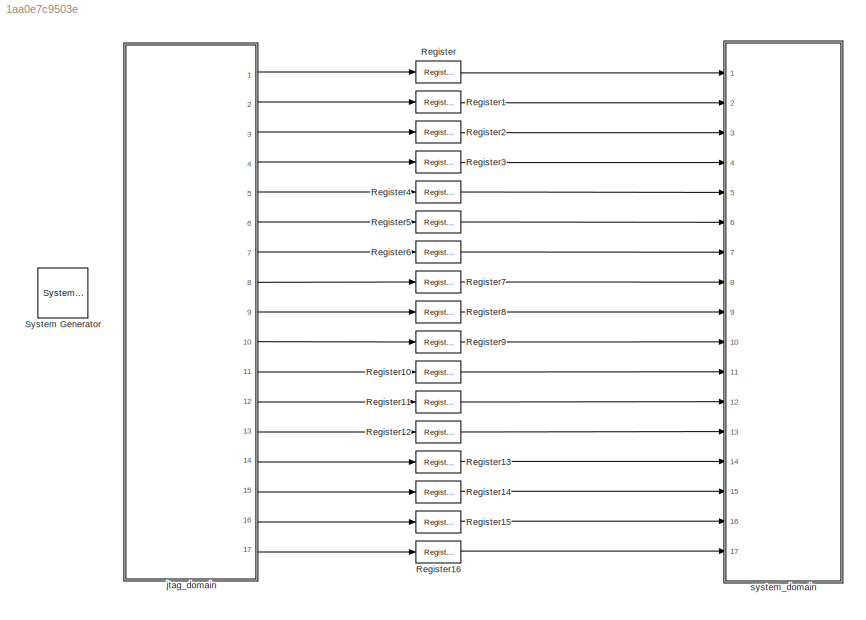
MODEL slx_1aa0e7c9503e
KIND model
CONFIG AbsTol = auto
CONFIG EnableMultiTasking = on
CONFIG FixedStep = auto
CONFIG MaxStep = auto
CONFIG MinStep = auto
CONFIG RelTol = 1e-3
CONFIG SampleTimeConstraint = Unconstrained
CONFIG Solver = VariableStepAuto
CONFIG SolverName = VariableStepAuto
CONFIG StartTime = 0.0
CONFIG StopTime = 120
BLOCK [Reference]  System Generator  REF=xbsIndex_r4/ System Generator
  AttributesFormatString = System\nGenerator
  Ports = []
  SourceBlock = xbsIndex_r4/ System Generator
  SourceType = Xilinx System Generator Block
  Tag = genX
  UserDataPersistent = on
BLOCK [Reference] Register  REF=xbsIndex_r4/Register
  Ports = [1, 1]
  SourceBlock = xbsIndex_r4/Register
  SourceType = Xilinx Register Block
BLOCK [Reference] Register1  REF=xbsIndex_r4/Register
  Ports = [1, 1]
  SourceBlock = xbsIndex_r4/Register
  SourceType = Xilinx Register Block
BLOCK [Reference] Register10  REF=xbsIndex_r4/Register
  Ports = [1, 1]
  SourceBlock = xbsIndex_r4/Register
  SourceType = Xilinx Register Block
BLOCK [Reference] Register11  REF=xbsIndex_r4/Register
  Ports = [1, 1]
  SourceBlock = xbsIndex_r4/Register
  SourceType = Xilinx Register Block
BLOCK [Reference] Register12  REF=xbsIndex_r4/Register
  Ports = [1, 1]
  SourceBlock = xbsIndex_r4/Register
  SourceType = Xilinx Register Block
BLOCK [Reference] Register13  REF=xbsIndex_r4/Register
  Ports = [1, 1]
  SourceBlock = xbsIndex_r4/Register
  SourceType = Xilinx Register Block
BLOCK [Reference] Register14  REF=xbsIndex_r4/Register
  Ports = [1, 1]
  SourceBlock = xbsIndex_r4/Register
  SourceType = Xilinx Register Block
BLOCK [Reference] Register15  REF=xbsIndex_r4/Register
  Ports = [1, 1]
  SourceBlock = xbsIndex_r4/Register
  SourceType = Xilinx Register Block
BLOCK [Reference] Register16  REF=xbsIndex_r4/Register
  Ports = [1, 1]
  SourceBlock = xbsIndex_r4/Register
  SourceType = Xilinx Register Block
BLOCK [Reference] Register2  REF=xbsIndex_r4/Register
  Ports = [1, 1]
  SourceBlock = xbsIndex_r4/Register
  SourceType = Xilinx Register Block
BLOCK [Reference] Register3  REF=xbsIndex_r4/Register
  Ports = [1, 1]
  SourceBlock = xbsIndex_r4/Register
  SourceType = Xilinx Register Block
BLOCK [Reference] Register4  REF=xbsIndex_r4/Register
  Ports = [1, 1]
  SourceBlock = xbsIndex_r4/Register
  SourceType = Xilinx Register Block
BLOCK [Reference] Register5  REF=xbsIndex_r4/Register
  Ports = [1, 1]
  SourceBlock = xbsIndex_r4/Register
  SourceType = Xilinx Register Block
BLOCK [Reference] Register6  REF=xbsIndex_r4/Register
  Ports = [1, 1]
  SourceBlock = xbsIndex_r4/Register
  SourceType = Xilinx Register Block
BLOCK [Reference] Register7  REF=xbsIndex_r4/Register
  Ports = [1, 1]
  SourceBlock = xbsIndex_r4/Register
  SourceType = Xilinx Register Block
BLOCK [Reference] Register8  REF=xbsIndex_r4/Register
  Ports = [1, 1]
  SourceBlock = xbsIndex_r4/Register
  SourceType = Xilinx Register Block
BLOCK [Reference] Register9  REF=xbsIndex_r4/Register
  Ports = [1, 1]
  SourceBlock = xbsIndex_r4/Register
  SourceType = Xilinx Register Block
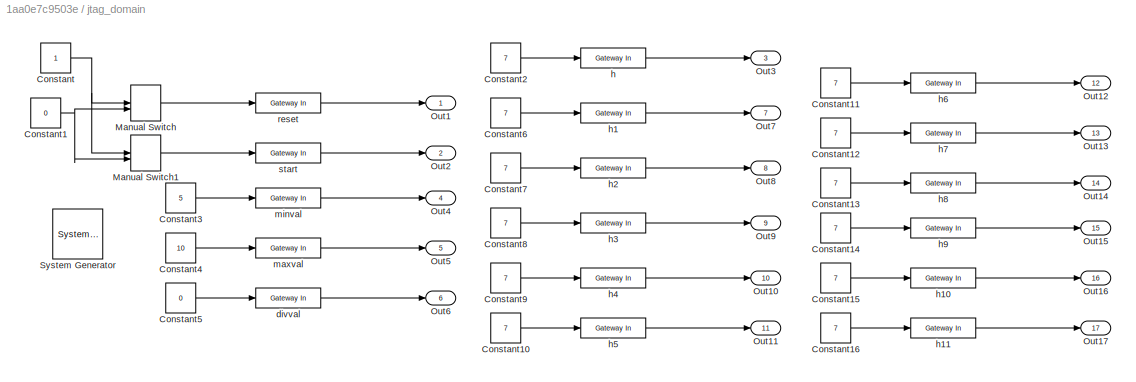
BLOCK [SubSystem] jtag_domain
  Ports = [0, 17]
  RequestExecContextInheritance = off
  Variant = off
BLOCK [Reference] jtag_domain/ System Generator  REF=xbsIndex_r4/ System Generator
  AttributesFormatString = System\nGenerator
  Ports = []
  SourceBlock = xbsIndex_r4/ System Generator
  SourceType = Xilinx System Generator Block
  Tag = genX
  UserDataPersistent = on
BLOCK [Constant] jtag_domain/Constant
BLOCK [Constant] jtag_domain/Constant1
  Value = 0
BLOCK [Constant] jtag_domain/Constant10
  Value = 7
BLOCK [Constant] jtag_domain/Constant11
  Value = 7
BLOCK [Constant] jtag_domain/Constant12
  Value = 7
BLOCK [Constant] jtag_domain/Constant13
  Value = 7
BLOCK [Constant] jtag_domain/Constant14
  Value = 7
BLOCK [Constant] jtag_domain/Constant15
  Value = 7
BLOCK [Constant] jtag_domain/Constant16
  Value = 7
BLOCK [Constant] jtag_domain/Constant2
  Value = 7
BLOCK [Constant] jtag_domain/Constant3
  Value = 5
BLOCK [Constant] jtag_domain/Constant4
  Value = 10
BLOCK [Constant] jtag_domain/Constant5
  Value = 0
BLOCK [Constant] jtag_domain/Constant6
  Value = 7
BLOCK [Constant] jtag_domain/Constant7
  Value = 7
BLOCK [Constant] jtag_domain/Constant8
  Value = 7
BLOCK [Constant] jtag_domain/Constant9
  Value = 7
BLOCK [ManualSwitch] jtag_domain/Manual Switch
  CurrentSetting = 0
BLOCK [ManualSwitch] jtag_domain/Manual Switch1
BLOCK [Outport] jtag_domain/Out1
  IconDisplay = Port number
BLOCK [Outport] jtag_domain/Out10
  IconDisplay = Port number
  Port = 10
BLOCK [Outport] jtag_domain/Out11
  IconDisplay = Port number
  Port = 11
BLOCK [Outport] jtag_domain/Out12
  IconDisplay = Port number
  Port = 12
BLOCK [Outport] jtag_domain/Out13
  IconDisplay = Port number
  Port = 13
BLOCK [Outport] jtag_domain/Out14
  IconDisplay = Port number
  Port = 14
BLOCK [Outport] jtag_domain/Out15
  IconDisplay = Port number
  Port = 15
BLOCK [Outport] jtag_domain/Out16
  IconDisplay = Port number
  Port = 16
BLOCK [Outport] jtag_domain/Out17
  IconDisplay = Port number
  Port = 17
BLOCK [Outport] jtag_domain/Out2
  IconDisplay = Port number
  Port = 2
BLOCK [Outport] jtag_domain/Out3
  IconDisplay = Port number
  Port = 3
BLOCK [Outport] jtag_domain/Out4
  IconDisplay = Port number
  Port = 4
BLOCK [Outport] jtag_domain/Out5
  IconDisplay = Port number
  Port = 5
BLOCK [Outport] jtag_domain/Out6
  IconDisplay = Port number
  Port = 6
BLOCK [Outport] jtag_domain/Out7
  IconDisplay = Port number
  Port = 7
BLOCK [Outport] jtag_domain/Out8
  IconDisplay = Port number
  Port = 8
BLOCK [Outport] jtag_domain/Out9
  IconDisplay = Port number
  Port = 9
BLOCK [Reference] jtag_domain/divval  REF=xbsIndex_r4/Gateway In
  Ports = [1, 1]
  SourceBlock = xbsIndex_r4/Gateway In
  SourceType = Xilinx Gateway In Block
BLOCK [Reference] jtag_domain/h  REF=xbsIndex_r4/Gateway In
  Ports = [1, 1]
  SourceBlock = xbsIndex_r4/Gateway In
  SourceType = Xilinx Gateway In Block
BLOCK [Reference] jtag_domain/h1  REF=xbsIndex_r4/Gateway In
  Ports = [1, 1]
  SourceBlock = xbsIndex_r4/Gateway In
  SourceType = Xilinx Gateway In Block
BLOCK [Reference] jtag_domain/h10  REF=xbsIndex_r4/Gateway In
  Ports = [1, 1]
  SourceBlock = xbsIndex_r4/Gateway In
  SourceType = Xilinx Gateway In Block
BLOCK [Reference] jtag_domain/h11  REF=xbsIndex_r4/Gateway In
  Ports = [1, 1]
  SourceBlock = xbsIndex_r4/Gateway In
  SourceType = Xilinx Gateway In Block
BLOCK [Reference] jtag_domain/h2  REF=xbsIndex_r4/Gateway In
  Ports = [1, 1]
  SourceBlock = xbsIndex_r4/Gateway In
  SourceType = Xilinx Gateway In Block
BLOCK [Reference] jtag_domain/h3  REF=xbsIndex_r4/Gateway In
  Ports = [1, 1]
  SourceBlock = xbsIndex_r4/Gateway In
  SourceType = Xilinx Gateway In Block
BLOCK [Reference] jtag_domain/h4  REF=xbsIndex_r4/Gateway In
  Ports = [1, 1]
  SourceBlock = xbsIndex_r4/Gateway In
  SourceType = Xilinx Gateway In Block
BLOCK [Reference] jtag_domain/h5  REF=xbsIndex_r4/Gateway In
  Ports = [1, 1]
  SourceBlock = xbsIndex_r4/Gateway In
  SourceType = Xilinx Gateway In Block
BLOCK [Reference] jtag_domain/h6  REF=xbsIndex_r4/Gateway In
  Ports = [1, 1]
  SourceBlock = xbsIndex_r4/Gateway In
  SourceType = Xilinx Gateway In Block
BLOCK [Reference] jtag_domain/h7  REF=xbsIndex_r4/Gateway In
  Ports = [1, 1]
  SourceBlock = xbsIndex_r4/Gateway In
  SourceType = Xilinx Gateway In Block
BLOCK [Reference] jtag_domain/h8  REF=xbsIndex_r4/Gateway In
  Ports = [1, 1]
  SourceBlock = xbsIndex_r4/Gateway In
  SourceType = Xilinx Gateway In Block
BLOCK [Reference] jtag_domain/h9  REF=xbsIndex_r4/Gateway In
  Ports = [1, 1]
  SourceBlock = xbsIndex_r4/Gateway In
  SourceType = Xilinx Gateway In Block
BLOCK [Reference] jtag_domain/maxval  REF=xbsIndex_r4/Gateway In
  Ports = [1, 1]
  SourceBlock = xbsIndex_r4/Gateway In
  SourceType = Xilinx Gateway In Block
BLOCK [Reference] jtag_domain/minval  REF=xbsIndex_r4/Gateway In
  Ports = [1, 1]
  SourceBlock = xbsIndex_r4/Gateway In
  SourceType = Xilinx Gateway In Block
BLOCK [Reference] jtag_domain/reset  REF=xbsIndex_r4/Gateway In
  Ports = [1, 1]
  SourceBlock = xbsIndex_r4/Gateway In
  SourceType = Xilinx Gateway In Block
BLOCK [Reference] jtag_domain/start  REF=xbsIndex_r4/Gateway In
  Ports = [1, 1]
  SourceBlock = xbsIndex_r4/Gateway In
  SourceType = Xilinx Gateway In Block
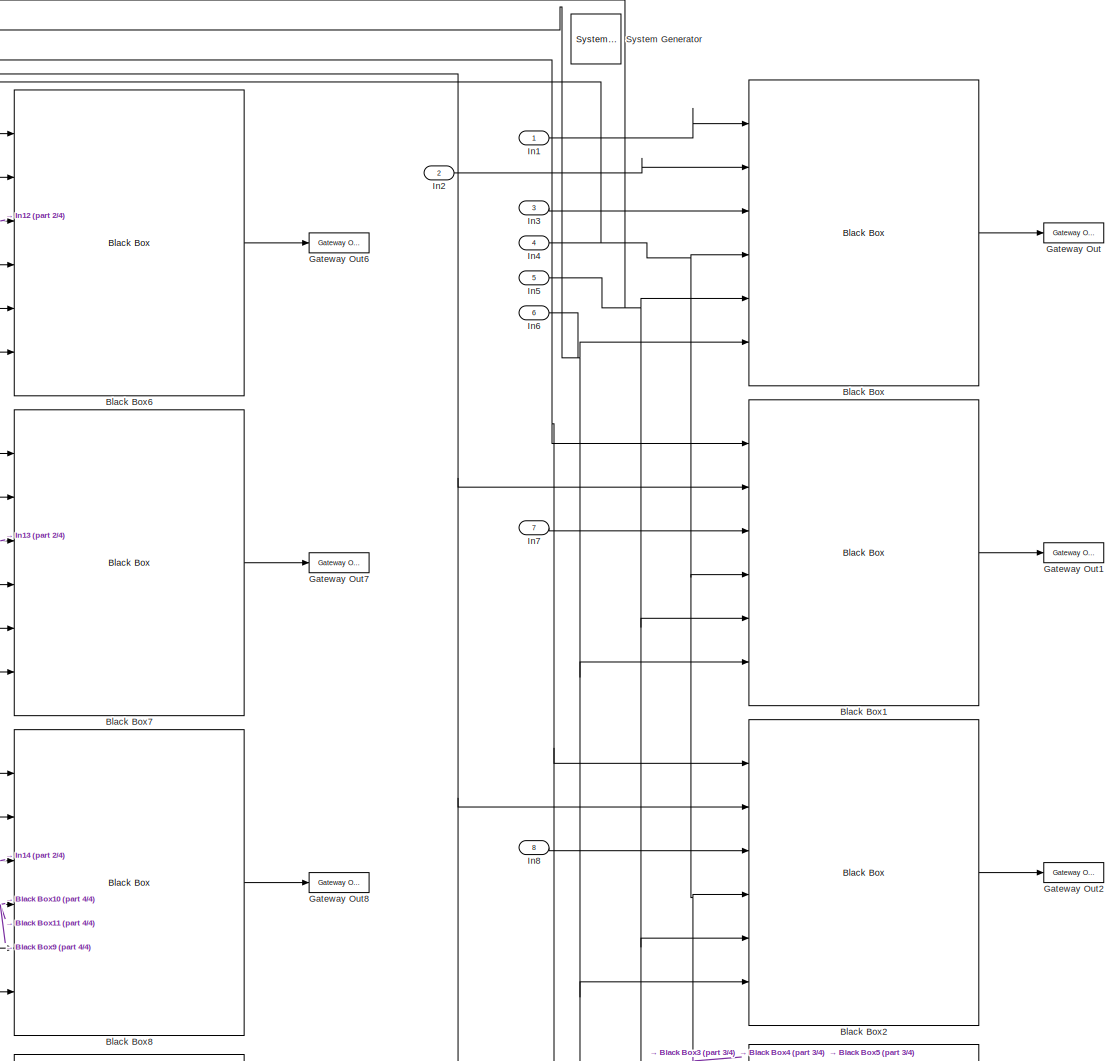
[diagram: system_domain - part 1/4, full width, top band]
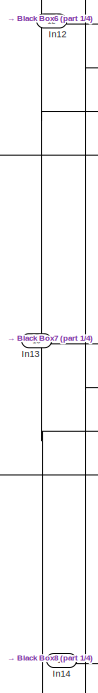
[diagram: system_domain - part 2/4, top left region]
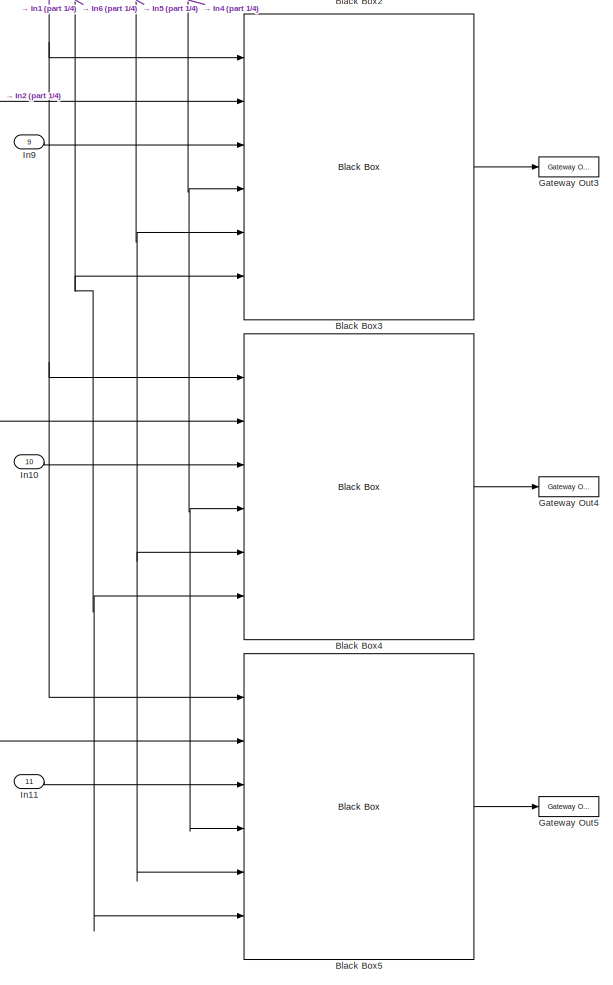
[diagram: system_domain - part 3/4, bottom right region]
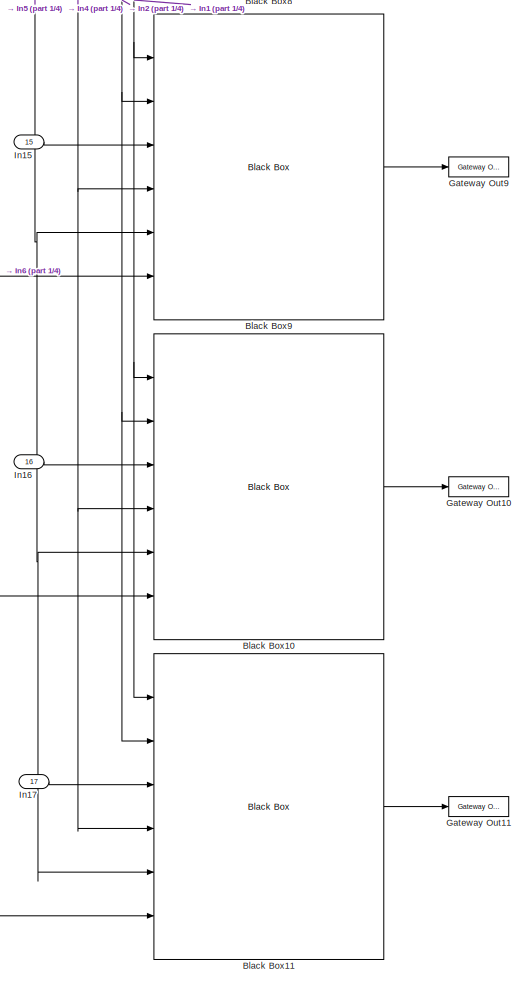
[diagram: system_domain - part 4/4, bottom left region]
BLOCK [SubSystem] system_domain
  Ports = [17]
  RequestExecContextInheritance = off
  Variant = off
BLOCK [Reference] system_domain/ System Generator  REF=xbsIndex_r4/ System Generator
  AttributesFormatString = System\nGenerator
  Ports = []
  SourceBlock = xbsIndex_r4/ System Generator
  SourceType = Xilinx System Generator Block
  Tag = genX
  UserDataPersistent = on
BLOCK [Reference] system_domain/Black Box  REF=xbsIndex_r4/Black Box
  Ports = [6, 1]
  SourceBlock = xbsIndex_r4/Black Box
  SourceType = Xilinx Black Box Block
BLOCK [Reference] system_domain/Black Box1  REF=xbsIndex_r4/Black Box
  Ports = [6, 1]
  SourceBlock = xbsIndex_r4/Black Box
  SourceType = Xilinx Black Box Block
BLOCK [Reference] system_domain/Black Box10  REF=xbsIndex_r4/Black Box
  Ports = [6, 1]
  SourceBlock = xbsIndex_r4/Black Box
  SourceType = Xilinx Black Box Block
BLOCK [Reference] system_domain/Black Box11  REF=xbsIndex_r4/Black Box
  Ports = [6, 1]
  SourceBlock = xbsIndex_r4/Black Box
  SourceType = Xilinx Black Box Block
BLOCK [Reference] system_domain/Black Box2  REF=xbsIndex_r4/Black Box
  Ports = [6, 1]
  SourceBlock = xbsIndex_r4/Black Box
  SourceType = Xilinx Black Box Block
BLOCK [Reference] system_domain/Black Box3  REF=xbsIndex_r4/Black Box
  Ports = [6, 1]
  SourceBlock = xbsIndex_r4/Black Box
  SourceType = Xilinx Black Box Block
BLOCK [Reference] system_domain/Black Box4  REF=xbsIndex_r4/Black Box
  Ports = [6, 1]
  SourceBlock = xbsIndex_r4/Black Box
  SourceType = Xilinx Black Box Block
BLOCK [Reference] system_domain/Black Box5  REF=xbsIndex_r4/Black Box
  Ports = [6, 1]
  SourceBlock = xbsIndex_r4/Black Box
  SourceType = Xilinx Black Box Block
BLOCK [Reference] system_domain/Black Box6  REF=xbsIndex_r4/Black Box
  Ports = [6, 1]
  SourceBlock = xbsIndex_r4/Black Box
  SourceType = Xilinx Black Box Block
BLOCK [Reference] system_domain/Black Box7  REF=xbsIndex_r4/Black Box
  Ports = [6, 1]
  SourceBlock = xbsIndex_r4/Black Box
  SourceType = Xilinx Black Box Block
BLOCK [Reference] system_domain/Black Box8  REF=xbsIndex_r4/Black Box
  Ports = [6, 1]
  SourceBlock = xbsIndex_r4/Black Box
  SourceType = Xilinx Black Box Block
BLOCK [Reference] system_domain/Black Box9  REF=xbsIndex_r4/Black Box
  Ports = [6, 1]
  SourceBlock = xbsIndex_r4/Black Box
  SourceType = Xilinx Black Box Block
BLOCK [Reference] system_domain/Gateway Out  REF=xbsIndex_r4/Gateway Out
  Ports = [1, 1]
  SourceBlock = xbsIndex_r4/Gateway Out
  SourceType = Xilinx Gateway Out Block
BLOCK [Reference] system_domain/Gateway Out1  REF=xbsIndex_r4/Gateway Out
  Ports = [1, 1]
  SourceBlock = xbsIndex_r4/Gateway Out
  SourceType = Xilinx Gateway Out Block
BLOCK [Reference] system_domain/Gateway Out10  REF=xbsIndex_r4/Gateway Out
  Ports = [1, 1]
  SourceBlock = xbsIndex_r4/Gateway Out
  SourceType = Xilinx Gateway Out Block
BLOCK [Reference] system_domain/Gateway Out11  REF=xbsIndex_r4/Gateway Out
  Ports = [1, 1]
  SourceBlock = xbsIndex_r4/Gateway Out
  SourceType = Xilinx Gateway Out Block
BLOCK [Reference] system_domain/Gateway Out2  REF=xbsIndex_r4/Gateway Out
  Ports = [1, 1]
  SourceBlock = xbsIndex_r4/Gateway Out
  SourceType = Xilinx Gateway Out Block
BLOCK [Reference] system_domain/Gateway Out3  REF=xbsIndex_r4/Gateway Out
  Ports = [1, 1]
  SourceBlock = xbsIndex_r4/Gateway Out
  SourceType = Xilinx Gateway Out Block
BLOCK [Reference] system_domain/Gateway Out4  REF=xbsIndex_r4/Gateway Out
  Ports = [1, 1]
  SourceBlock = xbsIndex_r4/Gateway Out
  SourceType = Xilinx Gateway Out Block
BLOCK [Reference] system_domain/Gateway Out5  REF=xbsIndex_r4/Gateway Out
  Ports = [1, 1]
  SourceBlock = xbsIndex_r4/Gateway Out
  SourceType = Xilinx Gateway Out Block
BLOCK [Reference] system_domain/Gateway Out6  REF=xbsIndex_r4/Gateway Out
  Ports = [1, 1]
  SourceBlock = xbsIndex_r4/Gateway Out
  SourceType = Xilinx Gateway Out Block
BLOCK [Reference] system_domain/Gateway Out7  REF=xbsIndex_r4/Gateway Out
  Ports = [1, 1]
  SourceBlock = xbsIndex_r4/Gateway Out
  SourceType = Xilinx Gateway Out Block
BLOCK [Reference] system_domain/Gateway Out8  REF=xbsIndex_r4/Gateway Out
  Ports = [1, 1]
  SourceBlock = xbsIndex_r4/Gateway Out
  SourceType = Xilinx Gateway Out Block
BLOCK [Reference] system_domain/Gateway Out9  REF=xbsIndex_r4/Gateway Out
  Ports = [1, 1]
  SourceBlock = xbsIndex_r4/Gateway Out
  SourceType = Xilinx Gateway Out Block
BLOCK [Inport] system_domain/In1
  IconDisplay = Port number
BLOCK [Inport] system_domain/In10
  IconDisplay = Port number
  Port = 10
BLOCK [Inport] system_domain/In11
  IconDisplay = Port number
  Port = 11
BLOCK [Inport] system_domain/In12
  IconDisplay = Port number
  Port = 12
BLOCK [Inport] system_domain/In13
  IconDisplay = Port number
  Port = 13
BLOCK [Inport] system_domain/In14
  IconDisplay = Port number
  Port = 14
BLOCK [Inport] system_domain/In15
  IconDisplay = Port number
  Port = 15
BLOCK [Inport] system_domain/In16
  IconDisplay = Port number
  Port = 16
BLOCK [Inport] system_domain/In17
  IconDisplay = Port number
  Port = 17
BLOCK [Inport] system_domain/In2
  IconDisplay = Port number
  Port = 2
BLOCK [Inport] system_domain/In3
  IconDisplay = Port number
  Port = 3
BLOCK [Inport] system_domain/In4
  IconDisplay = Port number
  Port = 4
BLOCK [Inport] system_domain/In5
  IconDisplay = Port number
  Port = 5
BLOCK [Inport] system_domain/In6
  IconDisplay = Port number
  Port = 6
BLOCK [Inport] system_domain/In7
  IconDisplay = Port number
  Port = 7
BLOCK [Inport] system_domain/In8
  IconDisplay = Port number
  Port = 8
BLOCK [Inport] system_domain/In9
  IconDisplay = Port number
  Port = 9
LINE Register10:1 -> system_domain:11
LINE Register11:1 -> system_domain:12
LINE Register12:1 -> system_domain:13
LINE Register13:1 -> system_domain:14
LINE Register14:1 -> system_domain:15
LINE Register15:1 -> system_domain:16
LINE Register16:1 -> system_domain:17
LINE Register1:1 -> system_domain:2
LINE Register2:1 -> system_domain:3
LINE Register3:1 -> system_domain:4
LINE Register4:1 -> system_domain:5
LINE Register5:1 -> system_domain:6
LINE Register6:1 -> system_domain:7
LINE Register7:1 -> system_domain:8
LINE Register8:1 -> system_domain:9
LINE Register9:1 -> system_domain:10
LINE Register:1 -> system_domain:1
LINE jtag_domain/Constant10:1 -> jtag_domain/h5:1
LINE jtag_domain/Constant11:1 -> jtag_domain/h6:1
LINE jtag_domain/Constant12:1 -> jtag_domain/h7:1
LINE jtag_domain/Constant13:1 -> jtag_domain/h8:1
LINE jtag_domain/Constant14:1 -> jtag_domain/h9:1
LINE jtag_domain/Constant15:1 -> jtag_domain/h10:1
LINE jtag_domain/Constant16:1 -> jtag_domain/h11:1
NET jtag_domain/Constant1:1 -> jtag_domain/Manual Switch1:2, jtag_domain/Manual Switch:2
LINE jtag_domain/Constant2:1 -> jtag_domain/h:1
LINE jtag_domain/Constant3:1 -> jtag_domain/minval:1
LINE jtag_domain/Constant4:1 -> jtag_domain/maxval:1
LINE jtag_domain/Constant5:1 -> jtag_domain/divval:1
LINE jtag_domain/Constant6:1 -> jtag_domain/h1:1
LINE jtag_domain/Constant7:1 -> jtag_domain/h2:1
LINE jtag_domain/Constant8:1 -> jtag_domain/h3:1
LINE jtag_domain/Constant9:1 -> jtag_domain/h4:1
NET jtag_domain/Constant:1 -> jtag_domain/Manual Switch1:1, jtag_domain/Manual Switch:1
LINE jtag_domain/Manual Switch1:1 -> jtag_domain/start:1
LINE jtag_domain/Manual Switch:1 -> jtag_domain/reset:1
LINE jtag_domain/divval:1 -> jtag_domain/Out6:1
LINE jtag_domain/h10:1 -> jtag_domain/Out16:1
LINE jtag_domain/h11:1 -> jtag_domain/Out17:1
LINE jtag_domain/h1:1 -> jtag_domain/Out7:1
LINE jtag_domain/h2:1 -> jtag_domain/Out8:1
LINE jtag_domain/h3:1 -> jtag_domain/Out9:1
LINE jtag_domain/h4:1 -> jtag_domain/Out10:1
LINE jtag_domain/h5:1 -> jtag_domain/Out11:1
LINE jtag_domain/h6:1 -> jtag_domain/Out12:1
LINE jtag_domain/h7:1 -> jtag_domain/Out13:1
LINE jtag_domain/h8:1 -> jtag_domain/Out14:1
LINE jtag_domain/h9:1 -> jtag_domain/Out15:1
LINE jtag_domain/h:1 -> jtag_domain/Out3:1
LINE jtag_domain/maxval:1 -> jtag_domain/Out5:1
LINE jtag_domain/minval:1 -> jtag_domain/Out4:1
LINE jtag_domain/reset:1 -> jtag_domain/Out1:1
LINE jtag_domain/start:1 -> jtag_domain/Out2:1
LINE jtag_domain:1 -> Register:1
LINE jtag_domain:10 -> Register9:1
LINE jtag_domain:11 -> Register10:1
LINE jtag_domain:12 -> Register11:1
LINE jtag_domain:13 -> Register12:1
LINE jtag_domain:14 -> Register13:1
LINE jtag_domain:15 -> Register14:1
LINE jtag_domain:16 -> Register15:1
LINE jtag_domain:17 -> Register16:1
LINE jtag_domain:2 -> Register1:1
LINE jtag_domain:3 -> Register2:1
LINE jtag_domain:4 -> Register3:1
LINE jtag_domain:5 -> Register4:1
LINE jtag_domain:6 -> Register5:1
LINE jtag_domain:7 -> Register6:1
LINE jtag_domain:8 -> Register7:1
LINE jtag_domain:9 -> Register8:1
LINE system_domain/Black Box10:1 -> system_domain/Gateway Out10:1
LINE system_domain/Black Box11:1 -> system_domain/Gateway Out11:1
LINE system_domain/Black Box1:1 -> system_domain/Gateway Out1:1
LINE system_domain/Black Box2:1 -> system_domain/Gateway Out2:1
LINE system_domain/Black Box3:1 -> system_domain/Gateway Out3:1
LINE system_domain/Black Box4:1 -> system_domain/Gateway Out4:1
LINE system_domain/Black Box5:1 -> system_domain/Gateway Out5:1
LINE system_domain/Black Box6:1 -> system_domain/Gateway Out6:1
LINE system_domain/Black Box7:1 -> system_domain/Gateway Out7:1
LINE system_domain/Black Box8:1 -> system_domain/Gateway Out8:1
LINE system_domain/Black Box9:1 -> system_domain/Gateway Out9:1
LINE system_domain/Black Box:1 -> system_domain/Gateway Out:1
LINE system_domain/In10:1 -> system_domain/Black Box4:3
LINE system_domain/In11:1 -> system_domain/Black Box5:3
LINE system_domain/In12:1 -> system_domain/Black Box6:3
LINE system_domain/In13:1 -> system_domain/Black Box7:3
LINE system_domain/In14:1 -> system_domain/Black Box8:3
LINE system_domain/In15:1 -> system_domain/Black Box9:3
LINE system_domain/In16:1 -> system_domain/Black Box10:3
LINE system_domain/In17:1 -> system_domain/Black Box11:3
NET system_domain/In1:1 -> system_domain/Black Box10:1, system_domain/Black Box11:1, system_domain/Black Box1:1, system_domain/Black Box2:1, system_domain/Black Box3:1, system_domain/Black Box4:1, system_domain/Black Box5:1, system_domain/Black Box6:1, system_domain/Black Box7:1, system_domain/Black Box8:1, system_domain/Black Box9:1, system_domain/Black Box:1
NET system_domain/In2:1 -> system_domain/Black Box10:2, system_domain/Black Box11:2, system_domain/Black Box1:2, system_domain/Black Box2:2, system_domain/Black Box3:2, system_domain/Black Box4:2, system_domain/Black Box5:2, system_domain/Black Box6:2, system_domain/Black Box7:2, system_domain/Black Box8:2, system_domain/Black Box9:2, system_domain/Black Box:2
LINE system_domain/In3:1 -> system_domain/Black Box:3
NET system_domain/In4:1 -> system_domain/Black Box10:4, system_domain/Black Box11:4, system_domain/Black Box1:4, system_domain/Black Box2:4, system_domain/Black Box3:4, system_domain/Black Box4:4, system_domain/Black Box5:4, system_domain/Black Box6:4, system_domain/Black Box7:4, system_domain/Black Box8:4, system_domain/Black Box9:4, system_domain/Black Box:4
NET system_domain/In5:1 -> system_domain/Black Box10:5, system_domain/Black Box11:5, system_domain/Black Box1:5, system_domain/Black Box2:5, system_domain/Black Box3:5, system_domain/Black Box4:5, system_domain/Black Box5:5, system_domain/Black Box6:5, system_domain/Black Box7:5, system_domain/Black Box8:5, system_domain/Black Box9:5, system_domain/Black Box:5
NET system_domain/In6:1 -> system_domain/Black Box10:6, system_domain/Black Box11:6, system_domain/Black Box1:6, system_domain/Black Box2:6, system_domain/Black Box3:6, system_domain/Black Box4:6, system_domain/Black Box5:6, system_domain/Black Box6:6, system_domain/Black Box7:6, system_domain/Black Box8:6, system_domain/Black Box9:6, system_domain/Black Box:6
LINE system_domain/In7:1 -> system_domain/Black Box1:3
LINE system_domain/In8:1 -> system_domain/Black Box2:3
LINE system_domain/In9:1 -> system_domain/Black Box3:3
note: NET lines group one-source signal fan-out (src -> all destinations, sorted); 1:1 wires keep LINE
